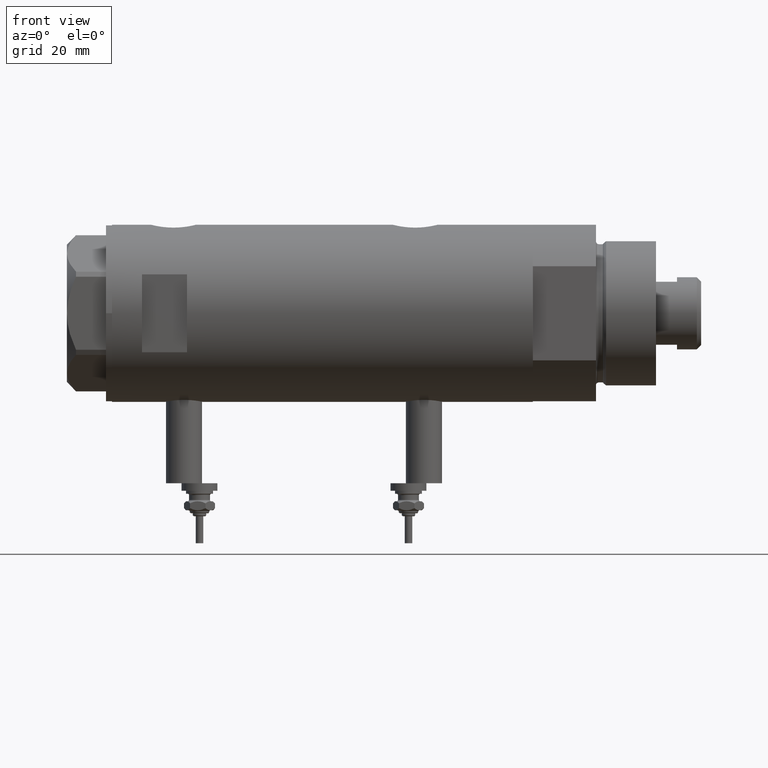
[diagram: clean part render]
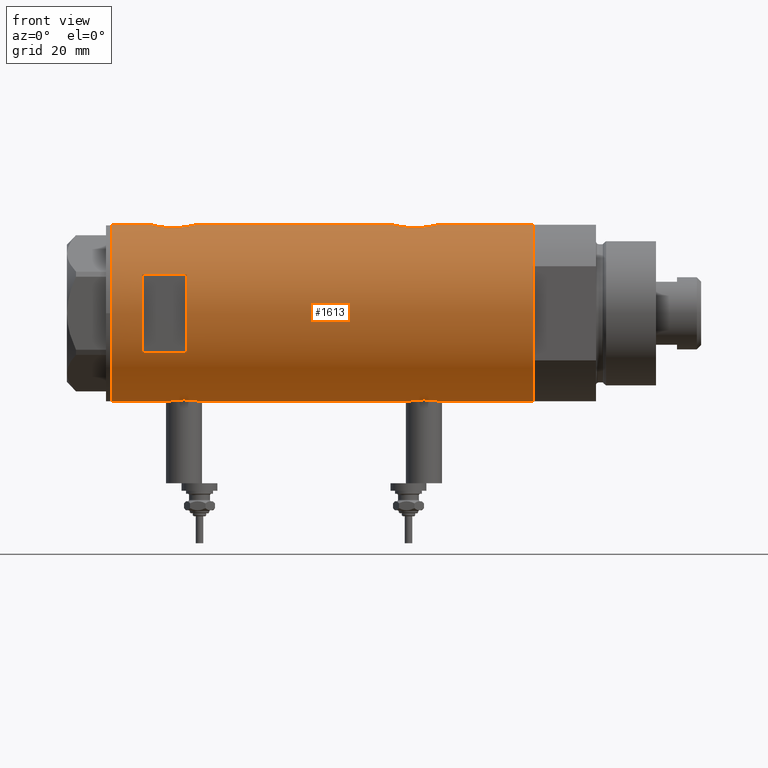
[diagram: same view with one face highlighted and labeled with its STEP entity id]
A machine part, front view. The second image highlights one B-rep face of the part: STEP entity #1613.
In plain terms, the highlighted cylindrical surface (partial cylindrical patch) has radius 29.5 mm, axis along (-1, -0, 0).
Its self-contained STEP definition (entity closure, byte-faithful):
#27 = ORIENTED_EDGE ( 'NONE', *, *, #2396, .F. ) ;
#56 = CARTESIAN_POINT ( 'NONE',  ( -28.99856997507319178, -5.420860550814445844, -36.93723012145799345 ) ) ;
#85 = CARTESIAN_POINT ( 'NONE',  ( -29.33428005013169582, -3.127775714777724758, -39.21493203872592659 ) ) ;
#101 = CARTESIAN_POINT ( 'NONE',  ( -28.91427970886710597, -5.849862889315913250, 43.89006866871147849 ) ) ;
#104 = CARTESIAN_POINT ( 'NONE',  ( 28.98740664105172016, -5.478212189394663589, -36.02819516185791571 ) ) ;
#113 = CARTESIAN_POINT ( 'NONE',  ( -29.37055817176824846, -2.766456155496577640, -39.40813607588911083 ) ) ;
#136 = ORIENTED_EDGE ( 'NONE', *, *, #4465, .F. ) ;
#150 = AXIS2_PLACEMENT_3D ( 'NONE', #2555, #708, #2498 ) ;
#152 = CARTESIAN_POINT ( 'NONE',  ( 29.50000000000000355, 0.000000000000000000, -70.09999999999999432 ) ) ;
#159 = CARTESIAN_POINT ( 'NONE',  ( -29.25427426731712544, -3.815048240656436107, 41.13259231846663511 ) ) ;
#166 = CARTESIAN_POINT ( 'NONE',  ( 29.50000000000000711, -0.4905639552620933430, -23.40000000000000213 ) ) ;
#173 = CARTESIAN_POINT ( 'NONE',  ( -28.83909499632370199, -6.209928350489661852, -32.98382218917040376 ) ) ;
#199 = CARTESIAN_POINT ( 'NONE',  ( 29.23250901027695647, -3.968959760999265729, -24.53153982712338532 ) ) ;
#204 = CARTESIAN_POINT ( 'NONE',  ( 0.000000000000000000, 0.000000000000000000, -70.09999999999999432 ) ) ;
#223 = CARTESIAN_POINT ( 'NONE',  ( 28.62986945670068550, -7.114680680403729696, 52.02393776006690729 ) ) ;
#226 = CARTESIAN_POINT ( 'NONE',  ( -29.05872136210575007, -5.084685578900224989, 49.74009991908757655 ) ) ;
#259 = CARTESIAN_POINT ( 'NONE',  ( 28.53399451186755442, -7.487442594623181513, 50.09897485501112868 ) ) ;
#274 = ORIENTED_EDGE ( 'NONE', *, *, #2034, .F. ) ;
#298 = CARTESIAN_POINT ( 'NONE',  ( 29.40378957563275009, -2.423455993307766398, 56.71449460115983499 ) ) ;
#313 = VERTEX_POINT ( 'NONE', #5299 ) ;
#330 = CARTESIAN_POINT ( 'NONE',  ( 29.50000000000000355, 0.000000000000000000, -70.09999999999999432 ) ) ;
#353 = EDGE_CURVE ( 'NONE', #2636, #313, #2094, .T. ) ;
#458 = AXIS2_PLACEMENT_3D ( 'NONE', #204, #792, #4441 ) ;
#514 = CARTESIAN_POINT ( 'NONE',  ( 29.50000000000000355, -2.068661527048439545E-15, -38.39999999999999147 ) ) ;
#536 = CARTESIAN_POINT ( 'NONE',  ( -29.46613381094001483, -1.427468570127968350, -27.71172459459601001 ) ) ;
#571 = CARTESIAN_POINT ( 'NONE',  ( -29.21108587560690495, -4.128853169727752181, -38.50967276909590709 ) ) ;
#588 = ORIENTED_EDGE ( 'NONE', *, *, #3836, .T. ) ;
#589 = CARTESIAN_POINT ( 'NONE',  ( -28.87532468301957067, -6.038983942005349270, 44.47670632311462668 ) ) ;
#594 = CARTESIAN_POINT ( 'NONE',  ( 29.17410189149616428, -4.377709617224029515, -36.99475827476019418 ) ) ;
#621 = CARTESIAN_POINT ( 'NONE',  ( 29.33743940633120673, -3.100990836771689629, -24.06672487560934925 ) ) ;
#625 = CARTESIAN_POINT ( 'NONE',  ( -28.96147498926091757, -5.613273026676372623, -36.57892698342578086 ) ) ;
#630 = DIRECTION ( 'NONE',  ( -0.000000000000000000, 0.000000000000000000, -1.000000000000000000 ) ) ;
#686 = CARTESIAN_POINT ( 'NONE',  ( -29.33428005013170292, -3.127775714777720761, 40.68506796127406488 ) ) ;
#689 = CARTESIAN_POINT ( 'NONE',  ( 28.62983003203746080, -7.114781472982439681, -33.32273058853736813 ) ) ;
#708 = DIRECTION ( 'NONE',  ( 0.000000000000000000, 0.000000000000000000, 1.000000000000000000 ) ) ;
#746 = CARTESIAN_POINT ( 'NONE',  ( 28.62983003203746080, -7.114781472982439681, 47.17726941146262476 ) ) ;
#748 = VERTEX_POINT ( 'NONE', #3458 ) ;
#754 = CARTESIAN_POINT ( 'NONE',  ( -29.50000000000000355, 3.612708057484692393E-15, -70.09999999999999432 ) ) ;
#792 = DIRECTION ( 'NONE',  ( 0.000000000000000000, 0.000000000000000000, 1.000000000000000000 ) ) ;
#809 = CARTESIAN_POINT ( 'NONE',  ( 29.23250901027695647, -3.968959760999266617, 55.96846017287659691 ) ) ;
#811 = B_SPLINE_CURVE_WITH_KNOTS ( 'NONE', 3,
 ( #3774, #166, #1145, #5696, #3407, #621, #4692, #4795, #199, #1971, #2377, #3309, #3373, #2435, #2963, #5624, #1493, #4284, #3344, #1018, #4223, #1593, #5107, #5666, #2890, #1053, #689, #2830, #2864, #1470, #4188, #1561, #104, #5145, #3746, #5239, #594, #5179, #5558, #1531, #5202, #4718, #2008, #3839 ),
 .UNSPECIFIED., .F., .F.,
 ( 4, 2, 2, 2, 2, 2, 2, 2, 2, 2, 2, 2, 2, 2, 2, 2, 2, 2, 2, 2, 2, 4 ),
 ( 0.02354540741801906117, 0.02501659793198018553, 0.02648778844594131335, 0.02722338370292187726, 0.02795897895990244117, 0.02943016947386356552, 0.03016576473084412943, 0.03090135998782469334, 0.03237255050178582116, 0.03384374101574694205, 0.03457933627272750943, 0.03531493152970806987, 0.03678612204366919769, 0.03825731255763031857, 0.03972850307159145333, 0.04046409832857202071, 0.04119969358555258809, 0.04193528884253315547, 0.04267088409951372979, 0.04414207461347487149, 0.04561326512743601319, 0.04708445564139715489 ),
 .UNSPECIFIED. ) ;
#837 = CARTESIAN_POINT ( 'NONE',  ( 29.26065241255352589, -3.756597382275444819, 56.09604434819189578 ) ) ;
#873 = CARTESIAN_POINT ( 'NONE',  ( 28.95592074821772854, -5.641779806288289123, 44.65226504197967472 ) ) ;
#900 = CARTESIAN_POINT ( 'NONE',  ( 29.14351131874355261, -4.576283785862462317, 43.65294675151479709 ) ) ;
#922 = VERTEX_POINT ( 'NONE', #974 ) ;
#930 = CARTESIAN_POINT ( 'NONE',  ( 29.48742104091792982, -0.9879539515379943682, 42.14904301646024720 ) ) ;
#963 = AXIS2_PLACEMENT_3D ( 'NONE', #4730, #630, #2452 ) ;
#965 = VERTEX_POINT ( 'NONE', #514 ) ;
#974 = CARTESIAN_POINT ( 'NONE',  ( 12.96148139681573319, -26.49999999999998934, 60.09999999999998721 ) ) ;
#987 = EDGE_CURVE ( 'NONE', #1324, #1445, #5597, .T. ) ;
#1001 = CARTESIAN_POINT ( 'NONE',  ( -29.25361239466581154, -3.820294933898102485, -28.83642010285960211 ) ) ;
#1015 = CARTESIAN_POINT ( 'NONE',  ( -28.96147498926091757, -5.613273026676365518, 43.32107301657420351 ) ) ;
#1018 = CARTESIAN_POINT ( 'NONE',  ( 28.55627543367308618, -7.402134446380870259, -29.66780349681762274 ) ) ;
#1053 = CARTESIAN_POINT ( 'NONE',  ( 28.59279484545186989, -7.260293545345768429, -32.84406557984471675 ) ) ;
#1057 = VERTEX_POINT ( 'NONE', #1819 ) ;
#1063 = CARTESIAN_POINT ( 'NONE',  ( -29.50000000000000355, 3.612706708236066082E-15, -40.05000000000000426 ) ) ;
#1071 = VECTOR ( 'NONE', #4572, 1000.000000000000000 ) ;
#1073 = LINE ( 'NONE', #152, #5045 ) ;
#1080 = CARTESIAN_POINT ( 'NONE',  ( -29.31475612970062983, -3.305202271067057218, 40.79152131156142502 ) ) ;
#1106 = CARTESIAN_POINT ( 'NONE',  ( -29.41741605749266597, -2.213861184585005581, 51.94831174451368838 ) ) ;
#1118 = CARTESIAN_POINT ( 'NONE',  ( -28.83260549167351883, -6.239494599049531409, -34.21615084301799214 ) ) ;
#1142 = CARTESIAN_POINT ( 'NONE',  ( -28.83028160285195796, -6.250189016175734302, 46.50967003214677220 ) ) ;
#1145 = CARTESIAN_POINT ( 'NONE',  ( 29.48775985681159284, -0.9798361908152550814, -23.44769556118673037 ) ) ;
#1172 = CARTESIAN_POINT ( 'NONE',  ( 29.33743940633121028, -3.100990836771690073, 56.43327512439066140 ) ) ;
#1196 = CARTESIAN_POINT ( 'NONE',  ( 29.50000000000000355, -1.363453657738827866E-15, 42.09999999999999432 ) ) ;
#1220 = ORIENTED_EDGE ( 'NONE', *, *, #1564, .F. ) ;
#1319 = VECTOR ( 'NONE', #3586, 1000.000000000000000 ) ;
#1324 = VERTEX_POINT ( 'NONE', #4300 ) ;
#1346 = CARTESIAN_POINT ( 'NONE',  ( 29.05028789344173745, -5.134328181356786480, 44.12753542393733852 ) ) ;
#1379 = LINE ( 'NONE', #5888, #1071 ) ;
#1409 = CARTESIAN_POINT ( 'NONE',  ( 12.96148139681573319, -26.49999999999998934, 45.09999999999998721 ) ) ;
#1445 = VERTEX_POINT ( 'NONE', #2681 ) ;
#1452 = CARTESIAN_POINT ( 'NONE',  ( -29.08006251441182854, -4.961575945539725474, -29.99381497947475239 ) ) ;
#1470 = CARTESIAN_POINT ( 'NONE',  ( 28.86290657878786448, -6.099358034152092323, -35.27130670042605232 ) ) ;
#1488 = CARTESIAN_POINT ( 'NONE',  ( -29.08006251441183210, -4.961575945539727250, 49.90618502052525685 ) ) ;
#1493 = CARTESIAN_POINT ( 'NONE',  ( 28.72151714661536204, -6.735173278284146470, -27.56359529429124322 ) ) ;
#1502 = CARTESIAN_POINT ( 'NONE',  ( -29.49152014567324542, -0.8152473631539811638, -40.01035294833332046 ) ) ;
#1531 = CARTESIAN_POINT ( 'NONE',  ( 29.40305664607912917, -2.432276947006150714, -38.01147801006585780 ) ) ;
#1541 = CARTESIAN_POINT ( 'NONE',  ( -29.45566469296798218, -1.628675872921094170, -27.76243967371322796 ) ) ;
#1559 = CARTESIAN_POINT ( 'NONE',  ( -29.50000000000000711, -0.4084468586314294880, 39.85000000000000853 ) ) ;
#1561 = CARTESIAN_POINT ( 'NONE',  ( 28.95592074821772854, -5.641779806288297117, -35.84773495802029686 ) ) ;
#1564 = EDGE_CURVE ( 'NONE', #1057, #1324, #5765, .T. ) ;
#1570 = CARTESIAN_POINT ( 'NONE',  ( -29.12311479234994138, -4.702282052053733175, -29.67776471113516479 ) ) ;
#1593 = CARTESIAN_POINT ( 'NONE',  ( 28.53399451186755442, -7.487442594623181513, -30.40102514498886777 ) ) ;
#1613 = ADVANCED_FACE ( 'NONE', ( #3964, #3506 ), #5814, .T. ) ;
#1659 = CARTESIAN_POINT ( 'NONE',  ( 28.54347630091233867, -7.451827970232786313, 48.61943218216036655 ) ) ;
#1682 = CARTESIAN_POINT ( 'NONE',  ( 28.72051071455671334, -6.739402597165489617, 46.27281026296244448 ) ) ;
#1690 = EDGE_LOOP ( 'NONE', ( #27, #4581, #274, #4292 ) ) ;
#1721 = CARTESIAN_POINT ( 'NONE',  ( 0.000000000000000000, 0.000000000000000000, -70.09999999999999432 ) ) ;
#1744 = CARTESIAN_POINT ( 'NONE',  ( 28.98816846638396072, -5.474212100855873508, 54.73252159883303136 ) ) ;
#1756 = CARTESIAN_POINT ( 'NONE',  ( 29.50000000000000355, -1.363453657738827866E-15, 42.09999999999999432 ) ) ;
#1769 = DIRECTION ( 'NONE',  ( 0.000000000000000000, 0.000000000000000000, 1.000000000000000000 ) ) ;
#1819 = CARTESIAN_POINT ( 'NONE',  ( -29.50000000000000355, 7.333735512235174214E-18, -27.54999999999999361 ) ) ;
#1863 = VERTEX_POINT ( 'NONE', #1899 ) ;
#1895 = CARTESIAN_POINT ( 'NONE',  ( -29.38738983525000492, -2.582042051636506130, -39.49535171595380234 ) ) ;
#1899 = CARTESIAN_POINT ( 'NONE',  ( -12.96148139681573319, -26.49999999999998934, 45.09999999999998721 ) ) ;
#1912 = CIRCLE ( 'NONE', #4978, 29.50000000000000355 ) ;
#1926 = CARTESIAN_POINT ( 'NONE',  ( -29.50000000000000355, 7.333735512235174214E-18, -27.54999999999999361 ) ) ;
#1939 = CARTESIAN_POINT ( 'NONE',  ( -28.87288655002253179, -6.050870399762844798, 47.71750540721806289 ) ) ;
#1967 = CARTESIAN_POINT ( 'NONE',  ( -28.89999183068148625, -5.919812056825914937, 44.08499761164583219 ) ) ;
#1971 = CARTESIAN_POINT ( 'NONE',  ( 29.14531914445118943, -4.579221598645966118, -24.94009767007192480 ) ) ;
#1980 = CARTESIAN_POINT ( 'NONE',  ( -29.43130053621387532, -2.021711243143688552, -27.88244954039818779 ) ) ;
#2003 = CARTESIAN_POINT ( 'NONE',  ( -28.99856997507320244, -5.420860550814435186, 42.96276987854199092 ) ) ;
#2008 = CARTESIAN_POINT ( 'NONE',  ( 29.50000000000000711, -0.4976091310423219616, -38.39999999999999858 ) ) ;
#2034 = EDGE_CURVE ( 'NONE', #922, #2804, #3534, .T. ) ;
#2059 = CARTESIAN_POINT ( 'NONE',  ( 28.59337635119608123, -7.258007499531542450, 51.55216225651361128 ) ) ;
#2060 = CARTESIAN_POINT ( 'NONE',  ( -29.21016169868140011, -4.135295259288787051, 50.80390088086508626 ) ) ;
#2090 = CARTESIAN_POINT ( 'NONE',  ( 28.95619957017310497, -5.640369376407877056, 54.54939726490174934 ) ) ;
#2094 = LINE ( 'NONE', #330, #4486 ) ;
#2106 = LINE ( 'NONE', #4358, #2691 ) ;
#2121 = CARTESIAN_POINT ( 'NONE',  ( 28.72151714661536204, -6.735173278284145582, 52.93640470570872480 ) ) ;
#2130 = CARTESIAN_POINT ( 'NONE',  ( -29.50000000000000355, 3.612708057484692393E-15, -70.09999999999999432 ) ) ;
#2148 = LINE ( 'NONE', #2130, #5606 ) ;
#2171 = DIRECTION ( 'NONE',  ( 0.000000000000000000, 0.000000000000000000, 1.000000000000000000 ) ) ;
#2256 = CARTESIAN_POINT ( 'NONE',  ( 29.31438578683259522, -3.335040812377227937, 42.86452723156225630 ) ) ;
#2263 = LINE ( 'NONE', #4602, #2601 ) ;
#2271 = VERTEX_POINT ( 'NONE', #3193 ) ;
#2285 = ORIENTED_EDGE ( 'NONE', *, *, #3463, .F. ) ;
#2329 = CARTESIAN_POINT ( 'NONE',  ( -29.50000000000001421, -0.4084468586314303207, -40.05000000000001847 ) ) ;
#2354 = CARTESIAN_POINT ( 'NONE',  ( -29.49128673965871883, -0.8227026017531489099, -27.59075558927904126 ) ) ;
#2377 = CARTESIAN_POINT ( 'NONE',  ( 29.08294968506023892, -4.955368226349206928, -25.24903281801533694 ) ) ;
#2396 = EDGE_CURVE ( 'NONE', #1863, #5187, #1912, .T. ) ;
#2406 = CARTESIAN_POINT ( 'NONE',  ( -28.83260549167351527, -6.239494599049529633, 45.68384915698199222 ) ) ;
#2411 = VERTEX_POINT ( 'NONE', #3160 ) ;
#2416 = CARTESIAN_POINT ( 'NONE',  ( -29.05872136210574297, -5.084685578900223213, -30.15990008091241137 ) ) ;
#2435 = CARTESIAN_POINT ( 'NONE',  ( 28.89374408016309914, -5.952042782108792451, -26.33015462974034193 ) ) ;
#2446 = CARTESIAN_POINT ( 'NONE',  ( -28.83034328164762528, -6.249904501012243152, -34.00914539564058714 ) ) ;
#2452 = DIRECTION ( 'NONE',  ( 1.000000000000000000, 0.000000000000000000, 0.000000000000000000 ) ) ;
#2498 = DIRECTION ( 'NONE',  ( 1.000000000000000000, 0.000000000000000000, 0.000000000000000000 ) ) ;
#2507 = CARTESIAN_POINT ( 'NONE',  ( -29.33479068874800788, -3.136645782783861858, 51.52155254614470437 ) ) ;
#2515 = B_SPLINE_CURVE_WITH_KNOTS ( 'NONE', 3,
 ( #3077, #4399, #3525, #4933, #298, #1172, #4909, #837, #809, #2530, #2629, #1744, #2090, #3884, #2563, #3559, #2121, #223, #2059, #4815, #5721, #259, #3927, #5759, #1659, #3017, #746, #1682, #3498, #4040, #3211, #873, #5490, #1346, #4993, #900, #2715, #4543, #2256, #4093, #3186, #930, #3086, #1756 ),
 .UNSPECIFIED., .F., .F.,
 ( 4, 2, 2, 2, 2, 2, 2, 2, 2, 2, 2, 2, 2, 2, 2, 2, 2, 2, 2, 2, 2, 4 ),
 ( 0.02354540741801906811, 0.02501659793198015777, 0.02648778844594124743, 0.02722338370292179052, 0.02795897895990233362, 0.02943016947386341287, 0.03016576473084396290, 0.03090135998782451293, 0.03237255050178562688, 0.03384374101574673388, 0.03457933627272730126, 0.03531493152970786864, 0.03678612204366901728, 0.03825731255763017286, 0.03972850307159132843, 0.04046409832857190969, 0.04119969358555249095, 0.04193528884253308608, 0.04267088409951366734, 0.04414207461347482986, 0.04561326512743600625, 0.04708445564139716877 ),
 .UNSPECIFIED. ) ;
#2530 = CARTESIAN_POINT ( 'NONE',  ( 29.14531914445117522, -4.579221598645967006, 55.55990232992807876 ) ) ;
#2555 = CARTESIAN_POINT ( 'NONE',  ( 0.000000000000000000, 0.000000000000000000, 70.09999999999999432 ) ) ;
#2563 = CARTESIAN_POINT ( 'NONE',  ( 28.86327882047615034, -6.097569254709688913, 53.97367090911448173 ) ) ;
#2567 = DIRECTION ( 'NONE',  ( 0.000000000000000000, 0.000000000000000000, 1.000000000000000000 ) ) ;
#2601 = VECTOR ( 'NONE', #2171, 1000.000000000000000 ) ;
#2629 = CARTESIAN_POINT ( 'NONE',  ( 29.08294968506023537, -4.955368226349206040, 55.25096718198464885 ) ) ;
#2636 = VERTEX_POINT ( 'NONE', #3071 ) ;
#2640 = CARTESIAN_POINT ( 'NONE',  ( -12.96148139681573319, -26.49999999999998934, 60.09999999999998721 ) ) ;
#2681 = CARTESIAN_POINT ( 'NONE',  ( -29.50000000000000355, -1.251314770453635394E-15, 52.34999999999999432 ) ) ;
#2691 = VECTOR ( 'NONE', #3000, 1000.000000000000000 ) ;
#2715 = CARTESIAN_POINT ( 'NONE',  ( 29.17410189149616428, -4.377709617224021521, 43.50524172523978450 ) ) ;
#2739 = LINE ( 'NONE', #5828, #1319 ) ;
#2745 = CIRCLE ( 'NONE', #150, 29.50000000000000355 ) ;
#2803 = CARTESIAN_POINT ( 'NONE',  ( -29.37136442049237317, -2.777615426151016642, -28.18634887377885079 ) ) ;
#2804 = VERTEX_POINT ( 'NONE', #2640 ) ;
#2823 = CARTESIAN_POINT ( 'NONE',  ( -29.12379578281188230, -4.705261494361425711, 41.96612042279722488 ) ) ;
#2830 = CARTESIAN_POINT ( 'NONE',  ( 28.72051071455672400, -6.739402597165488729, -34.22718973703751999 ) ) ;
#2864 = CARTESIAN_POINT ( 'NONE',  ( 28.77424839213764329, -6.509286280845839379, -34.65781251605954338 ) ) ;
#2877 = CARTESIAN_POINT ( 'NONE',  ( -28.87288655002253890, -6.050870399762843022, -32.18249459278194990 ) ) ;
#2881 = EDGE_CURVE ( 'NONE', #2636, #4423, #2515, .T. ) ;
#2890 = CARTESIAN_POINT ( 'NONE',  ( 28.54347630091234223, -7.451827970232788978, -31.88056781783958726 ) ) ;
#2893 = EDGE_LOOP ( 'NONE', ( #4032, #5276, #4251, #2285, #588, #4613, #3292, #136, #5006, #5432, #1220, #4915 ) ) ;
#2898 = CARTESIAN_POINT ( 'NONE',  ( -29.07948744859177026, -4.968520850090774488, -37.61336367378891055 ) ) ;
#2915 = CARTESIAN_POINT ( 'NONE',  ( -29.43130053621386821, -2.021711243143695214, 52.01755045960180723 ) ) ;
#2932 = CARTESIAN_POINT ( 'NONE',  ( -29.21016169868139656, -4.135295259288787939, -29.09609911913490876 ) ) ;
#2960 = CARTESIAN_POINT ( 'NONE',  ( -28.84137202824161861, -6.198846007008985914, 45.27611738876124292 ) ) ;
#2963 = CARTESIAN_POINT ( 'NONE',  ( 28.86327882047615390, -6.097569254709687137, -26.52632909088550051 ) ) ;
#2974 = CARTESIAN_POINT ( 'NONE',  ( -29.50000000000000355, 3.612706708236066082E-15, -40.05000000000000426 ) ) ;
#3000 = DIRECTION ( 'NONE',  ( -0.000000000000000000, -0.000000000000000000, -1.000000000000000000 ) ) ;
#3017 = CARTESIAN_POINT ( 'NONE',  ( 28.59279484545186989, -7.260293545345763100, 47.65593442015525483 ) ) ;
#3071 = CARTESIAN_POINT ( 'NONE',  ( 29.50000000000000355, -8.867894669064240341E-21, 57.09999999999999432 ) ) ;
#3077 = CARTESIAN_POINT ( 'NONE',  ( 29.50000000000000355, -8.867894669064240341E-21, 57.09999999999999432 ) ) ;
#3086 = CARTESIAN_POINT ( 'NONE',  ( 29.50000000000000711, -0.4976091310423220726, 42.10000000000000142 ) ) ;
#3160 = CARTESIAN_POINT ( 'NONE',  ( 29.50000000000000355, 0.000000000000000000, -70.09999999999999432 ) ) ;
#3186 = CARTESIAN_POINT ( 'NONE',  ( 29.43916859571211120, -1.954329820671499407, 42.34235520757911075 ) ) ;
#3193 = CARTESIAN_POINT ( 'NONE',  ( 29.50000000000000355, -8.867894669064240341E-21, -23.39999999999999147 ) ) ;
#3211 = CARTESIAN_POINT ( 'NONE',  ( 28.89374847711160399, -5.952001739005051917, 45.03016018920362740 ) ) ;
#3262 = CARTESIAN_POINT ( 'NONE',  ( -28.87532468301957422, -6.038983942005352823, -35.42329367688535768 ) ) ;
#3266 = EDGE_CURVE ( 'NONE', #3337, #1057, #5582, .T. ) ;
#3278 = CARTESIAN_POINT ( 'NONE',  ( -29.37055817176825556, -2.766456155496576752, 40.49186392411088775 ) ) ;
#3292 = ORIENTED_EDGE ( 'NONE', *, *, #353, .T. ) ;
#3303 = CARTESIAN_POINT ( 'NONE',  ( -29.12311479234994849, -4.702282052053736727, 50.22223528886483734 ) ) ;
#3309 = CARTESIAN_POINT ( 'NONE',  ( 28.98816846638396427, -5.474212100855875285, -25.76747840116693666 ) ) ;
#3320 = CARTESIAN_POINT ( 'NONE',  ( -29.43333839972901700, -2.017691896334584900, -39.72935989047841332 ) ) ;
#3331 = EDGE_CURVE ( 'NONE', #2804, #1863, #2106, .T. ) ;
#3337 = VERTEX_POINT ( 'NONE', #2974 ) ;
#3344 = CARTESIAN_POINT ( 'NONE',  ( 28.59337635119608123, -7.258007499531540674, -28.94783774348637806 ) ) ;
#3370 = CARTESIAN_POINT ( 'NONE',  ( -29.37136442049237317, -2.777615426151012201, 51.71365112622115845 ) ) ;
#3373 = CARTESIAN_POINT ( 'NONE',  ( 28.95619957017311208, -5.640369376407877944, -25.95060273509822579 ) ) ;
#3386 = CARTESIAN_POINT ( 'NONE',  ( -28.83028160285196151, -6.250189016175733414, -33.39032996785321217 ) ) ;
#3403 = CARTESIAN_POINT ( 'NONE',  ( -29.07948744859177026, -4.968520850090763830, 42.28663632621106672 ) ) ;
#3407 = CARTESIAN_POINT ( 'NONE',  ( 29.40378957563275009, -2.423455993307769063, -23.78550539884014725 ) ) ;
#3458 = CARTESIAN_POINT ( 'NONE',  ( -29.50000000000000355, 3.612708057484692393E-15, 70.09999999999999432 ) ) ;
#3463 = EDGE_CURVE ( 'NONE', #2271, #965, #811, .T. ) ;
#3498 = CARTESIAN_POINT ( 'NONE',  ( 28.77424839213763264, -6.509286280845835826, 45.84218748394042109 ) ) ;
#3506 = FACE_BOUND ( 'NONE', #1690, .T. ) ;
#3525 = CARTESIAN_POINT ( 'NONE',  ( 29.48775985681159284, -0.9798361908152568578, 57.05230443881323765 ) ) ;
#3534 = CIRCLE ( 'NONE', #963, 29.50000000000000355 ) ;
#3559 = CARTESIAN_POINT ( 'NONE',  ( 28.77541267587658780, -6.504036106227640168, 53.36628550135916527 ) ) ;
#3586 = DIRECTION ( 'NONE',  ( 0.000000000000000000, 0.000000000000000000, 1.000000000000000000 ) ) ;
#3613 = CARTESIAN_POINT ( 'NONE',  ( 0.000000000000000000, 0.000000000000000000, 45.09999999999998721 ) ) ;
#3676 = DIRECTION ( 'NONE',  ( 0.000000000000000000, 0.000000000000000000, 1.000000000000000000 ) ) ;
#3684 = VERTEX_POINT ( 'NONE', #754 ) ;
#3746 = CARTESIAN_POINT ( 'NONE',  ( 29.08168479815707386, -4.954011967599716293, -36.53627368515268614 ) ) ;
#3769 = CARTESIAN_POINT ( 'NONE',  ( -28.85437274499025762, -6.138402965889059537, 44.87243403294918664 ) ) ;
#3774 = CARTESIAN_POINT ( 'NONE',  ( 29.50000000000000355, -8.867894669064240341E-21, -23.39999999999999147 ) ) ;
#3780 = CARTESIAN_POINT ( 'NONE',  ( -28.99772237063717739, -5.425436006677728962, -30.67037325447358143 ) ) ;
#3797 = CARTESIAN_POINT ( 'NONE',  ( -29.50000000000000355, -1.251314770453635394E-15, 52.34999999999999432 ) ) ;
#3816 = CARTESIAN_POINT ( 'NONE',  ( -28.84137202824162216, -6.198846007008988579, -34.62388261123872724 ) ) ;
#3834 = CARTESIAN_POINT ( 'NONE',  ( -28.83034328164762172, -6.249904501012241376, 45.89085460435939723 ) ) ;
#3836 = EDGE_CURVE ( 'NONE', #2271, #4423, #2263, .T. ) ;
#3837 = EDGE_CURVE ( 'NONE', #5187, #922, #1379, .T. ) ;
#3839 = CARTESIAN_POINT ( 'NONE',  ( 29.50000000000000355, -2.068661527048439545E-15, -38.39999999999999147 ) ) ;
#3848 = CARTESIAN_POINT ( 'NONE',  ( -29.25427426731712188, -3.815048240656441880, -38.76740768153335637 ) ) ;
#3884 = CARTESIAN_POINT ( 'NONE',  ( 28.89374408016308848, -5.952042782108791563, 54.16984537025963675 ) ) ;
#3887 = CARTESIAN_POINT ( 'NONE',  ( -29.45566469296799283, -1.628675872921102163, 52.13756032628675996 ) ) ;
#3899 = CARTESIAN_POINT ( 'NONE',  ( -29.50000000000000355, 3.612708057484692393E-15, -70.09999999999999432 ) ) ;
#3927 = CARTESIAN_POINT ( 'NONE',  ( 28.53070445389874976, -7.499926890973428684, 49.84953420512916722 ) ) ;
#3964 = FACE_OUTER_BOUND ( 'NONE', #2893, .T. ) ;
#3965 = DIRECTION ( 'NONE',  ( 0.000000000000000000, 0.000000000000000000, 1.000000000000000000 ) ) ;
#4001 = CIRCLE ( 'NONE', #458, 29.50000000000000355 ) ;
#4032 = ORIENTED_EDGE ( 'NONE', *, *, #5576, .F. ) ;
#4040 = CARTESIAN_POINT ( 'NONE',  ( 28.86290657878785737, -6.099358034152089658, 45.22869329957392637 ) ) ;
#4093 = CARTESIAN_POINT ( 'NONE',  ( 29.40305664607911140, -2.432276947006147605, 42.48852198993412088 ) ) ;
#4161 = EDGE_CURVE ( 'NONE', #1445, #748, #2739, .T. ) ;
#4168 = CARTESIAN_POINT ( 'NONE',  ( -29.31475612970063338, -3.305202271067065212, -39.10847868843855224 ) ) ;
#4188 = CARTESIAN_POINT ( 'NONE',  ( 28.89374847711160399, -5.952001739005060799, -35.46983981079634418 ) ) ;
#4197 = CARTESIAN_POINT ( 'NONE',  ( -29.50000000000001066, -0.4141077724969902119, -27.55000000000000071 ) ) ;
#4219 = CARTESIAN_POINT ( 'NONE',  ( -29.45797511864983420, -1.625450914296655336, 40.05094872469953060 ) ) ;
#4223 = CARTESIAN_POINT ( 'NONE',  ( 28.54678862679669038, -7.438514536388029619, -29.91041725679210472 ) ) ;
#4231 = CARTESIAN_POINT ( 'NONE',  ( -28.91427970886710597, -5.849862889315918579, -36.00993133128850587 ) ) ;
#4246 = CARTESIAN_POINT ( 'NONE',  ( -29.49999999999999645, -0.4141077724969866036, 52.34999999999998721 ) ) ;
#4251 = ORIENTED_EDGE ( 'NONE', *, *, #4743, .T. ) ;
#4257 = CARTESIAN_POINT ( 'NONE',  ( -29.33479068874800078, -3.136645782783866743, -28.37844745385530842 ) ) ;
#4278 = CARTESIAN_POINT ( 'NONE',  ( -29.49152014567325253, -0.8152473631539810528, 39.88964705166667812 ) ) ;
#4284 = CARTESIAN_POINT ( 'NONE',  ( 28.62986945670068195, -7.114680680403731472, -28.47606223993307850 ) ) ;
#4292 = ORIENTED_EDGE ( 'NONE', *, *, #3837, .F. ) ;
#4300 = CARTESIAN_POINT ( 'NONE',  ( -29.50000000000000355, 3.612706708267620518E-15, 39.84999999999999432 ) ) ;
#4311 = CARTESIAN_POINT ( 'NONE',  ( -28.96072448608914485, -5.617106371651694907, 48.87082731660439805 ) ) ;
#4341 = CARTESIAN_POINT ( 'NONE',  ( -28.99772237063717739, -5.425436006677730738, 49.22962674552640294 ) ) ;
#4358 = CARTESIAN_POINT ( 'NONE',  ( -12.96148139681573319, -26.49999999999999645, -70.09999999999999432 ) ) ;
#4379 = DIRECTION ( 'NONE',  ( 0.000000000000000000, 0.000000000000000000, 1.000000000000000000 ) ) ;
#4399 = CARTESIAN_POINT ( 'NONE',  ( 29.50000000000001066, -0.4905639552620955079, 57.10000000000000142 ) ) ;
#4423 = VERTEX_POINT ( 'NONE', #1196 ) ;
#4441 = DIRECTION ( 'NONE',  ( 1.000000000000000000, 0.000000000000000000, 0.000000000000000000 ) ) ;
#4458 = DIRECTION ( 'NONE',  ( -1.000000000000000000, 0.000000000000000000, 0.000000000000000000 ) ) ;
#4465 = EDGE_CURVE ( 'NONE', #748, #313, #2745, .T. ) ;
#4486 = VECTOR ( 'NONE', #2567, 1000.000000000000000 ) ;
#4543 = CARTESIAN_POINT ( 'NONE',  ( 29.26166309680877475, -3.765013078516705303, 43.09489767946936922 ) ) ;
#4553 = EDGE_CURVE ( 'NONE', #3684, #2411, #4001, .T. ) ;
#4572 = DIRECTION ( 'NONE',  ( 0.000000000000000000, 0.000000000000000000, 1.000000000000000000 ) ) ;
#4577 = DIRECTION ( 'NONE',  ( 1.000000000000000000, 0.000000000000000000, 0.000000000000000000 ) ) ;
#4581 = ORIENTED_EDGE ( 'NONE', *, *, #3331, .F. ) ;
#4582 = AXIS2_PLACEMENT_3D ( 'NONE', #1721, #4824, #4577 ) ;
#4602 = CARTESIAN_POINT ( 'NONE',  ( 29.50000000000000355, 0.000000000000000000, -70.09999999999999432 ) ) ;
#4613 = ORIENTED_EDGE ( 'NONE', *, *, #2881, .F. ) ;
#4632 = CARTESIAN_POINT ( 'NONE',  ( -29.41741605749266597, -2.213861184585011355, -27.95168825548629243 ) ) ;
#4687 = CARTESIAN_POINT ( 'NONE',  ( -29.38738983524999782, -2.582042051636494584, 40.40464828404620334 ) ) ;
#4692 = CARTESIAN_POINT ( 'NONE',  ( 29.31311917412635992, -3.322476152549147521, -24.17157014735704834 ) ) ;
#4704 = CARTESIAN_POINT ( 'NONE',  ( -29.45797511864983065, -1.625450914296656890, -39.84905127530045377 ) ) ;
#4716 = CARTESIAN_POINT ( 'NONE',  ( -29.43333839972901345, -2.017691896334574686, 40.17064010952159236 ) ) ;
#4718 = CARTESIAN_POINT ( 'NONE',  ( 29.48742104091791916, -0.9879539515379959225, -38.35095698353976701 ) ) ;
#4730 = CARTESIAN_POINT ( 'NONE',  ( 0.000000000000000000, 0.000000000000000000, 60.09999999999998721 ) ) ;
#4743 = EDGE_CURVE ( 'NONE', #2411, #965, #1073, .T. ) ;
#4790 = CARTESIAN_POINT ( 'NONE',  ( -29.25361239466581154, -3.820294933898098044, 51.06357989714039292 ) ) ;
#4795 = CARTESIAN_POINT ( 'NONE',  ( 29.26065241255351879, -3.756597382275439045, -24.40395565180809712 ) ) ;
#4815 = CARTESIAN_POINT ( 'NONE',  ( 28.55627543367308618, -7.402134446380870259, 50.83219650318237370 ) ) ;
#4824 = DIRECTION ( 'NONE',  ( 0.000000000000000000, 0.000000000000000000, 1.000000000000000000 ) ) ;
#4909 = CARTESIAN_POINT ( 'NONE',  ( 29.31311917412636348, -3.322476152549152406, 56.32842985264294100 ) ) ;
#4915 = ORIENTED_EDGE ( 'NONE', *, *, #3266, .F. ) ;
#4933 = CARTESIAN_POINT ( 'NONE',  ( 29.43922820968270671, -1.954457150219038208, 56.85789347245773229 ) ) ;
#4978 = AXIS2_PLACEMENT_3D ( 'NONE', #3613, #1769, #4458 ) ;
#4993 = CARTESIAN_POINT ( 'NONE',  ( 29.08168479815708451, -4.954011967599717181, 43.96372631484729965 ) ) ;
#5006 = ORIENTED_EDGE ( 'NONE', *, *, #4161, .F. ) ;
#5045 = VECTOR ( 'NONE', #3676, 1000.000000000000000 ) ;
#5088 = CARTESIAN_POINT ( 'NONE',  ( -28.96072448608914485, -5.617106371651691354, -31.02917268339557211 ) ) ;
#5104 = CARTESIAN_POINT ( 'NONE',  ( -29.49128673965871172, -0.8227026017531495761, 52.30924441072095021 ) ) ;
#5107 = CARTESIAN_POINT ( 'NONE',  ( 28.53070445389874621, -7.499926890973427795, -30.65046579487083278 ) ) ;
#5115 = CARTESIAN_POINT ( 'NONE',  ( -28.85437239305167267, -6.138402996999199779, -35.02756598756702999 ) ) ;
#5138 = CARTESIAN_POINT ( 'NONE',  ( -29.14490888978863481, -4.565669626908227308, 50.37298179876215443 ) ) ;
#5145 = CARTESIAN_POINT ( 'NONE',  ( 29.05028789344174456, -5.134328181356795362, -36.37246457606265437 ) ) ;
#5155 = CARTESIAN_POINT ( 'NONE',  ( -29.12379578281188941, -4.705261494361431929, -37.93387957720273818 ) ) ;
#5179 = CARTESIAN_POINT ( 'NONE',  ( 29.26166309680877831, -3.765013078516714629, -37.40510232053061657 ) ) ;
#5187 = VERTEX_POINT ( 'NONE', #1409 ) ;
#5202 = CARTESIAN_POINT ( 'NONE',  ( 29.43916859571211120, -1.954329820671501183, -38.15764479242086793 ) ) ;
#5211 = CARTESIAN_POINT ( 'NONE',  ( -29.14490888978862415, -4.565669626908225531, -29.52701820123783705 ) ) ;
#5239 = CARTESIAN_POINT ( 'NONE',  ( 29.14351131874356682, -4.576283785862464981, -36.84705324848519581 ) ) ;
#5276 = ORIENTED_EDGE ( 'NONE', *, *, #4553, .T. ) ;
#5299 = CARTESIAN_POINT ( 'NONE',  ( 29.50000000000000355, 0.000000000000000000, 70.09999999999999432 ) ) ;
#5432 = ORIENTED_EDGE ( 'NONE', *, *, #987, .F. ) ;
#5490 = CARTESIAN_POINT ( 'NONE',  ( 28.98740664105171305, -5.478212189394655596, 44.47180483814204877 ) ) ;
#5540 = CARTESIAN_POINT ( 'NONE',  ( -28.89999183068148270, -5.919812056825918489, -35.81500238835415928 ) ) ;
#5558 = CARTESIAN_POINT ( 'NONE',  ( 29.31438578683260232, -3.335040812377227049, -37.63547276843772238 ) ) ;
#5576 = EDGE_CURVE ( 'NONE', #3684, #3337, #2148, .T. ) ;
#5582 = B_SPLINE_CURVE_WITH_KNOTS ( 'NONE', 3,
 ( #1063, #2329, #1502, #4704, #3320, #1895, #113, #85, #4168, #3848, #571, #5155, #2898, #56, #625, #4231, #5540, #3262, #5115, #3816, #1118, #2446, #3386, #173, #2877, #5678, #5088, #3780, #2416, #1452, #1570, #5211, #2932, #1001, #4257, #2803, #4632, #1980, #1541, #536, #2354, #4197, #1926 ),
 .UNSPECIFIED., .F., .F.,
 ( 4, 2, 2, 2, 2, 2, 2, 2, 2, 1, 2, 2, 2, 2, 2, 2, 2, 2, 2, 2, 2, 4 ),
 ( 0.01959598605283711936, 0.02082041500883363358, 0.02204484396483014433, 0.02265705844282839970, 0.02326927292082665161, 0.02449370187682316583, 0.02571813083281968351, 0.02694255978881619773, 0.02755477426681446698, 0.02816698874481273623, 0.02877920322281100202, 0.02939141770080926780, 0.03061584665680580630, 0.03184027561280233787, 0.03306470456879888331, 0.03367691904679715603, 0.03428913352479542875, 0.03551356248079198807, 0.03673799143678854046, 0.03735020591478681318, 0.03796242039278509284, 0.03918684934878164522 ),
 .UNSPECIFIED. ) ;
#5584 = CARTESIAN_POINT ( 'NONE',  ( -28.83909499632370199, -6.209928350489660964, 46.91617781082957350 ) ) ;
#5597 = B_SPLINE_CURVE_WITH_KNOTS ( 'NONE', 3,
 ( #5645, #1559, #4278, #4219, #4716, #4687, #3278, #686, #1080, #159, #5693, #2823, #3403, #2003, #1015, #101, #1967, #589, #3769, #2960, #2406, #3834, #1142, #5584, #1939, #5659, #4311, #4341, #226, #1488, #3303, #5138, #2060, #4790, #2507, #3370, #1106, #2915, #3887, #5725, #5104, #4246, #3797 ),
 .UNSPECIFIED., .F., .F.,
 ( 4, 2, 2, 2, 2, 2, 2, 2, 2, 1, 2, 2, 2, 2, 2, 2, 2, 2, 2, 2, 2, 4 ),
 ( 0.01959598605283711242, 0.02082041500883366134, 0.02204484396483021025, 0.02265705844282848644, 0.02326927292082675916, 0.02449370187682329766, 0.02571813083281983617, 0.02694255978881637467, 0.02755477426681463352, 0.02816698874481289236, 0.02877920322281115467, 0.02939141770080941352, 0.03061584665680593120, 0.03184027561280244889, 0.03306470456879896658, 0.03367691904679723236, 0.03428913352479548426, 0.03551356248079202277, 0.03673799143678855433, 0.03735020591478682705, 0.03796242039278509284, 0.03918684934878162440 ),
 .UNSPECIFIED. ) ;
#5606 = VECTOR ( 'NONE', #3965, 1000.000000000000000 ) ;
#5624 = CARTESIAN_POINT ( 'NONE',  ( 28.77541267587658069, -6.504036106227637504, -27.13371449864084539 ) ) ;
#5645 = CARTESIAN_POINT ( 'NONE',  ( -29.50000000000000355, 3.612706708267620518E-15, 39.84999999999999432 ) ) ;
#5659 = CARTESIAN_POINT ( 'NONE',  ( -28.89828397447512032, -5.929977241120604425, 48.11611952241996448 ) ) ;
#5666 = CARTESIAN_POINT ( 'NONE',  ( 28.53064705443910754, -7.500145243772285752, -31.39244703291117133 ) ) ;
#5678 = CARTESIAN_POINT ( 'NONE',  ( -28.89828397447512032, -5.929977241120605314, -31.78388047758002344 ) ) ;
#5693 = CARTESIAN_POINT ( 'NONE',  ( -29.21108587560691205, -4.128853169727746852, 41.39032723090409860 ) ) ;
#5696 = CARTESIAN_POINT ( 'NONE',  ( 29.43922820968271381, -1.954457150219035322, -23.64210652754224284 ) ) ;
#5721 = CARTESIAN_POINT ( 'NONE',  ( 28.54678862679669038, -7.438514536388029619, 50.58958274320788462 ) ) ;
#5725 = CARTESIAN_POINT ( 'NONE',  ( -29.46613381094000417, -1.427468570127970349, 52.18827540540396370 ) ) ;
#5759 = CARTESIAN_POINT ( 'NONE',  ( 28.53064705443910043, -7.500145243772282200, 49.10755296708880735 ) ) ;
#5765 = LINE ( 'NONE', #3899, #5921 ) ;
#5814 = CYLINDRICAL_SURFACE ( 'NONE', #4582, 29.50000000000000355 ) ;
#5828 = CARTESIAN_POINT ( 'NONE',  ( -29.50000000000000355, 3.612708057484692393E-15, -70.09999999999999432 ) ) ;
#5888 = CARTESIAN_POINT ( 'NONE',  ( 12.96148139681573319, -26.49999999999999645, -70.09999999999999432 ) ) ;
#5921 = VECTOR ( 'NONE', #4379, 1000.000000000000000 ) ;